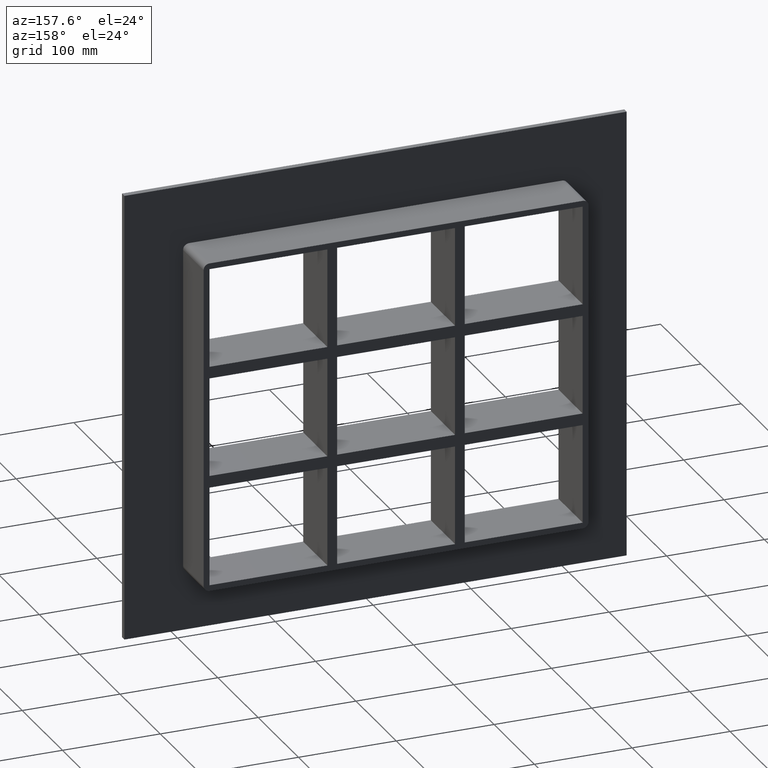
[diagram: clean part render]
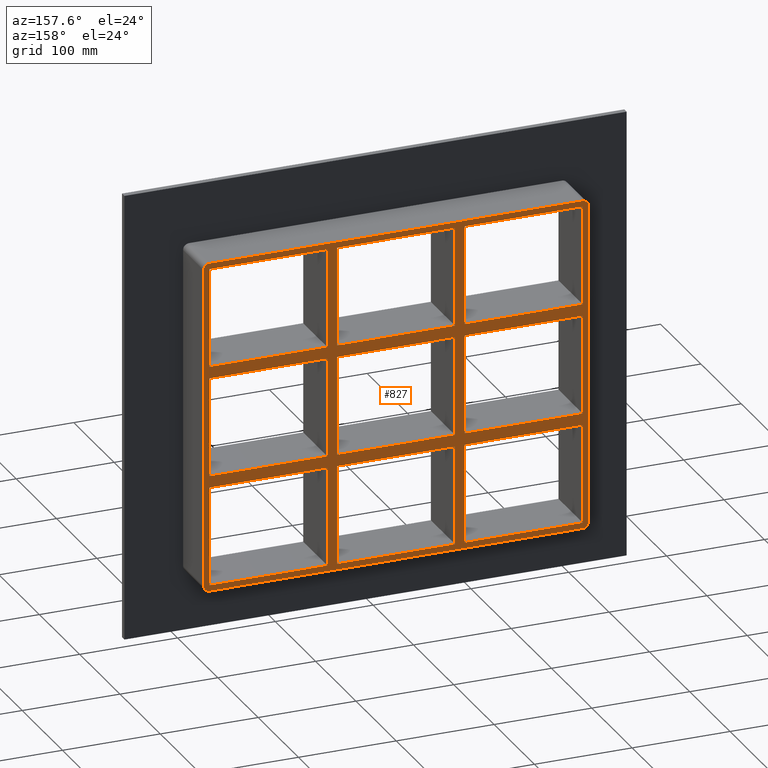
[diagram: same view with one face highlighted and labeled with its STEP entity id]
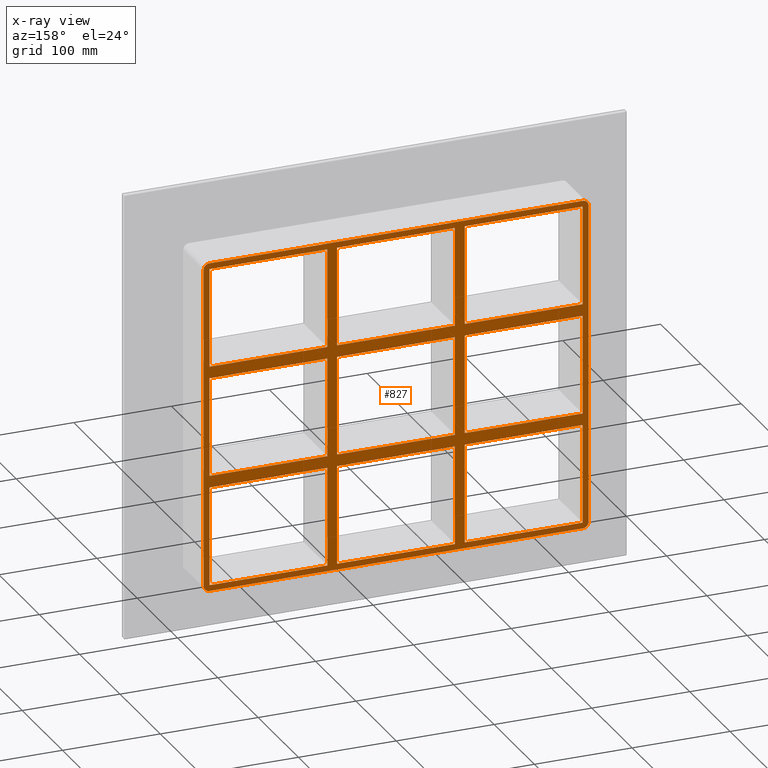
[diagram: x-ray of the same camera — body ghosted, the highlighted face saturated]
A machine part, auxiliary view. The second image highlights one B-rep face of the part: STEP entity #827.
The next image is the same camera in x-ray: the body ghosted, the highlighted face saturated — about 0% of this face is hidden behind the body in this view.
In plain terms, the highlighted planar face has unit normal (0, 1, 0).
Its self-contained STEP definition (entity closure, byte-faithful):
#75=CARTESIAN_POINT('',(-70.250000000001336,57.0,50.499999999990628));
#76=VERTEX_POINT('',#75);
#91=CARTESIAN_POINT('',(-190.74999999999966,57.0,50.499999999990628));
#92=VERTEX_POINT('',#91);
#99=CARTESIAN_POINT('',(-70.250000000001364,57.0,50.499999999990656));
#100=DIRECTION('',(-1.0,0.0,0.0));
#101=VECTOR('',#100,120.49999999999829);
#102=LINE('',#99,#101);
#103=EDGE_CURVE('',#76,#92,#102,.T.);
#113=CARTESIAN_POINT('',(70.250000000003638,57.0,50.499999999990692));
#114=VERTEX_POINT('',#113);
#123=CARTESIAN_POINT('',(190.74999999999818,57.0,50.49999999999072));
#124=VERTEX_POINT('',#123);
#125=CARTESIAN_POINT('',(190.74999999999818,57.0,50.49999999999072));
#126=DIRECTION('',(-1.0,0.0,0.0));
#127=VECTOR('',#126,120.49999999999454);
#128=LINE('',#125,#127);
#129=EDGE_CURVE('',#124,#114,#128,.T.);
#155=CARTESIAN_POINT('',(60.249999999998671,57.0,50.499999999990692));
#156=VERTEX_POINT('',#155);
#171=CARTESIAN_POINT('',(-60.249999999996362,57.0,50.499999999990663));
#172=VERTEX_POINT('',#171);
#179=CARTESIAN_POINT('',(60.249999999998664,57.0,50.499999999990692));
#180=DIRECTION('',(-1.0,0.0,0.0));
#181=VECTOR('',#180,120.49999999999503);
#182=LINE('',#179,#181);
#183=EDGE_CURVE('',#156,#172,#182,.T.);
#193=CARTESIAN_POINT('',(-70.250000000001336,57.0,62.499999999999893));
#194=VERTEX_POINT('',#193);
#203=CARTESIAN_POINT('',(-190.74999999999966,57.0,62.499999999999893));
#204=VERTEX_POINT('',#203);
#205=CARTESIAN_POINT('',(-190.74999999999966,57.0,62.499999999999893));
#206=DIRECTION('',(1.0,0.0,0.0));
#207=VECTOR('',#206,120.49999999999834);
#208=LINE('',#205,#207);
#209=EDGE_CURVE('',#204,#194,#208,.T.);
#235=CARTESIAN_POINT('',(70.250000000003638,57.0,62.499999999999893));
#236=VERTEX_POINT('',#235);
#251=CARTESIAN_POINT('',(190.74999999999994,57.0,62.499999999999893));
#252=VERTEX_POINT('',#251);
#259=CARTESIAN_POINT('',(70.250000000003638,57.0,62.499999999999893));
#260=DIRECTION('',(1.0,0.0,0.0));
#261=VECTOR('',#260,120.49999999999636);
#262=LINE('',#259,#261);
#263=EDGE_CURVE('',#236,#252,#262,.T.);
#273=CARTESIAN_POINT('',(60.249999999998671,57.0,62.499999999999893));
#274=VERTEX_POINT('',#273);
#283=CARTESIAN_POINT('',(-60.249999999996362,57.0,62.499999999999893));
#284=VERTEX_POINT('',#283);
#285=CARTESIAN_POINT('',(-60.249999999996362,57.0,62.499999999999893));
#286=DIRECTION('',(1.0,0.0,0.0));
#287=VECTOR('',#286,120.49999999999505);
#288=LINE('',#285,#287);
#289=EDGE_CURVE('',#284,#274,#288,.T.);
#314=CARTESIAN_POINT('',(-190.75,57.0,163.50000000000006));
#315=VERTEX_POINT('',#314);
#316=CARTESIAN_POINT('',(-190.75000000000003,57.0,163.50000000000003));
#317=DIRECTION('',(0.0,0.0,-1.0));
#318=VECTOR('',#317,101.00000000000014);
#319=LINE('',#316,#318);
#320=EDGE_CURVE('',#315,#204,#319,.T.);
#345=CARTESIAN_POINT('',(190.74999999999994,57.0,-50.500000000000114));
#346=VERTEX_POINT('',#345);
#347=CARTESIAN_POINT('',(190.75000000000006,57.0,-50.500000000000114));
#348=DIRECTION('',(0.0,0.0,1.0));
#349=VECTOR('',#348,100.99999999999083);
#350=LINE('',#347,#349);
#351=EDGE_CURVE('',#346,#124,#350,.T.);
#384=CARTESIAN_POINT('',(190.75000000000006,57.0,163.50000000000006));
#385=VERTEX_POINT('',#384);
#392=CARTESIAN_POINT('',(190.75000000000006,57.0,62.499999999999901));
#393=DIRECTION('',(0.0,0.0,1.0));
#394=VECTOR('',#393,101.00000000000016);
#395=LINE('',#392,#394);
#396=EDGE_CURVE('',#252,#385,#395,.T.);
#415=CARTESIAN_POINT('',(60.24999999999865,57.0,163.50000000000006));
#416=VERTEX_POINT('',#415);
#423=CARTESIAN_POINT('',(60.249999999998671,57.0,62.499999999999886));
#424=DIRECTION('',(0.0,0.0,1.0));
#425=VECTOR('',#424,101.00000000000017);
#426=LINE('',#423,#425);
#427=EDGE_CURVE('',#274,#416,#426,.T.);
#438=CARTESIAN_POINT('',(70.250000000003638,57.0,163.50000000000006));
#439=VERTEX_POINT('',#438);
#440=CARTESIAN_POINT('',(70.250000000003638,57.0,163.50000000000006));
#441=DIRECTION('',(0.0,0.0,-1.0));
#442=VECTOR('',#441,101.00000000000016);
#443=LINE('',#440,#442);
#444=EDGE_CURVE('',#439,#236,#443,.T.);
#477=CARTESIAN_POINT('',(-70.25000000000135,57.0,163.50000000000006));
#478=VERTEX_POINT('',#477);
#485=CARTESIAN_POINT('',(-70.25000000000135,57.0,62.499999999999886));
#486=DIRECTION('',(0.0,0.0,1.0));
#487=VECTOR('',#486,101.00000000000017);
#488=LINE('',#485,#487);
#489=EDGE_CURVE('',#194,#478,#488,.T.);
#500=CARTESIAN_POINT('',(-70.250000000001322,57.0,-50.500000000000114));
#501=VERTEX_POINT('',#500);
#502=CARTESIAN_POINT('',(-70.250000000001322,57.0,-50.500000000000114));
#503=DIRECTION('',(0.0,0.0,1.0));
#504=VECTOR('',#503,100.99999999999073);
#505=LINE('',#502,#504);
#506=EDGE_CURVE('',#501,#76,#505,.T.);
#531=CARTESIAN_POINT('',(-60.249999999996362,57.0,163.50000000000006));
#532=VERTEX_POINT('',#531);
#533=CARTESIAN_POINT('',(-60.249999999996362,57.0,163.50000000000006));
#534=DIRECTION('',(0.0,0.0,-1.0));
#535=VECTOR('',#534,101.00000000000016);
#536=LINE('',#533,#535);
#537=EDGE_CURVE('',#532,#284,#536,.T.);
#556=CARTESIAN_POINT('',(0.0,57.0,0.0));
#557=DIRECTION('',(0.0,1.0,0.0));
#558=DIRECTION('',(0.0,0.0,1.0));
#559=AXIS2_PLACEMENT_3D('',#556,#557,#558);
#560=PLANE('',#559);
#561=CARTESIAN_POINT('',(190.75000000000003,57.0,-169.50000000000003));
#562=VERTEX_POINT('',#561);
#563=CARTESIAN_POINT('',(196.75000000000006,57.0,-163.5));
#564=VERTEX_POINT('',#563);
#565=CARTESIAN_POINT('',(190.75000000000003,57.0,-163.5));
#566=DIRECTION('',(0.0,-1.0,0.0));
#567=DIRECTION('',(0.707106781186548,0.0,-0.707106781186548));
#568=AXIS2_PLACEMENT_3D('',#565,#566,#567);
#569=CIRCLE('',#568,6.000000000000002);
#570=EDGE_CURVE('',#562,#564,#569,.T.);
#571=ORIENTED_EDGE('',*,*,#570,.F.);
#572=CARTESIAN_POINT('',(-190.75000000000003,57.0,-169.50000000000003));
#573=VERTEX_POINT('',#572);
#574=CARTESIAN_POINT('',(190.75000000000006,57.0,-169.50000000000003));
#575=DIRECTION('',(-1.0,0.0,0.0));
#576=VECTOR('',#575,381.50000000000006);
#577=LINE('',#574,#576);
#578=EDGE_CURVE('',#562,#573,#577,.T.);
#579=ORIENTED_EDGE('',*,*,#578,.T.);
#580=CARTESIAN_POINT('',(-196.75000000000006,57.0,-163.5));
#581=VERTEX_POINT('',#580);
#582=CARTESIAN_POINT('',(-190.75000000000003,57.0,-163.5));
#583=DIRECTION('',(0.0,-1.0,0.0));
#584=DIRECTION('',(-0.707106781186548,0.0,-0.707106781186548));
#585=AXIS2_PLACEMENT_3D('',#582,#583,#584);
#586=CIRCLE('',#585,6.000000000000002);
#587=EDGE_CURVE('',#581,#573,#586,.T.);
#588=ORIENTED_EDGE('',*,*,#587,.F.);
#589=CARTESIAN_POINT('',(-196.75000000000006,57.0,163.5));
#590=VERTEX_POINT('',#589);
#591=CARTESIAN_POINT('',(-196.75000000000006,57.0,-163.5));
#592=DIRECTION('',(0.0,0.0,1.0));
#593=VECTOR('',#592,327.0);
#594=LINE('',#591,#593);
#595=EDGE_CURVE('',#581,#590,#594,.T.);
#596=ORIENTED_EDGE('',*,*,#595,.T.);
#597=CARTESIAN_POINT('',(-190.75000000000003,57.0,169.50000000000003));
#598=VERTEX_POINT('',#597);
#599=CARTESIAN_POINT('',(-190.75000000000003,57.0,163.5));
#600=DIRECTION('',(0.0,-1.0,0.0));
#601=DIRECTION('',(-0.707106781186548,0.0,0.707106781186548));
#602=AXIS2_PLACEMENT_3D('',#599,#600,#601);
#603=CIRCLE('',#602,6.000000000000002);
#604=EDGE_CURVE('',#598,#590,#603,.T.);
#605=ORIENTED_EDGE('',*,*,#604,.F.);
#606=CARTESIAN_POINT('',(190.75000000000003,57.0,169.50000000000003));
#607=VERTEX_POINT('',#606);
#608=CARTESIAN_POINT('',(-190.75000000000006,57.0,169.50000000000003));
#609=DIRECTION('',(1.0,0.0,0.0));
#610=VECTOR('',#609,381.50000000000006);
#611=LINE('',#608,#610);
#612=EDGE_CURVE('',#598,#607,#611,.T.);
#613=ORIENTED_EDGE('',*,*,#612,.T.);
#614=CARTESIAN_POINT('',(196.75000000000006,57.0,163.5));
#615=VERTEX_POINT('',#614);
#616=CARTESIAN_POINT('',(190.75000000000003,57.0,163.5));
#617=DIRECTION('',(0.0,-1.0,0.0));
#618=DIRECTION('',(0.707106781186548,0.0,0.707106781186548));
#619=AXIS2_PLACEMENT_3D('',#616,#617,#618);
#620=CIRCLE('',#619,6.000000000000002);
#621=EDGE_CURVE('',#615,#607,#620,.T.);
#622=ORIENTED_EDGE('',*,*,#621,.F.);
#623=CARTESIAN_POINT('',(196.75000000000006,57.0,163.5));
#624=DIRECTION('',(0.0,0.0,-1.0));
#625=VECTOR('',#624,327.0);
#626=LINE('',#623,#625);
#627=EDGE_CURVE('',#615,#564,#626,.T.);
#628=ORIENTED_EDGE('',*,*,#627,.T.);
#629=EDGE_LOOP('',(#571,#579,#588,#596,#605,#613,#622,#628));
#630=FACE_OUTER_BOUND('',#629,.T.);
#631=CARTESIAN_POINT('',(-190.74999999999966,57.0,-50.500000000000114));
#632=VERTEX_POINT('',#631);
#633=CARTESIAN_POINT('',(-190.75000000000003,57.0,50.499999999990621));
#634=DIRECTION('',(0.0,0.0,-1.0));
#635=VECTOR('',#634,100.99999999999073);
#636=LINE('',#633,#635);
#637=EDGE_CURVE('',#92,#632,#636,.T.);
#638=ORIENTED_EDGE('',*,*,#637,.T.);
#639=CARTESIAN_POINT('',(-190.74999999999966,57.0,-50.500000000000114));
#640=DIRECTION('',(1.0,0.0,0.0));
#641=VECTOR('',#640,120.49999999999835);
#642=LINE('',#639,#641);
#643=EDGE_CURVE('',#632,#501,#642,.T.);
#644=ORIENTED_EDGE('',*,*,#643,.T.);
#645=ORIENTED_EDGE('',*,*,#506,.T.);
#646=ORIENTED_EDGE('',*,*,#103,.T.);
#647=EDGE_LOOP('',(#638,#644,#645,#646));
#648=FACE_BOUND('',#647,.T.);
#649=ORIENTED_EDGE('',*,*,#396,.T.);
#650=CARTESIAN_POINT('',(190.75000000000006,57.0,163.50000000000006));
#651=DIRECTION('',(-1.0,0.0,0.0));
#652=VECTOR('',#651,120.4999999999964);
#653=LINE('',#650,#652);
#654=EDGE_CURVE('',#385,#439,#653,.T.);
#655=ORIENTED_EDGE('',*,*,#654,.T.);
#656=ORIENTED_EDGE('',*,*,#444,.T.);
#657=ORIENTED_EDGE('',*,*,#263,.T.);
#658=EDGE_LOOP('',(#649,#655,#656,#657));
#659=FACE_BOUND('',#658,.T.);
#660=ORIENTED_EDGE('',*,*,#427,.T.);
#661=CARTESIAN_POINT('',(60.24999999999865,57.0,163.50000000000006));
#662=DIRECTION('',(-1.0,0.0,0.0));
#663=VECTOR('',#662,120.49999999999501);
#664=LINE('',#661,#663);
#665=EDGE_CURVE('',#416,#532,#664,.T.);
#666=ORIENTED_EDGE('',*,*,#665,.T.);
#667=ORIENTED_EDGE('',*,*,#537,.T.);
#668=ORIENTED_EDGE('',*,*,#289,.T.);
#669=EDGE_LOOP('',(#660,#666,#667,#668));
#670=FACE_BOUND('',#669,.T.);
#671=ORIENTED_EDGE('',*,*,#129,.T.);
#672=CARTESIAN_POINT('',(70.250000000003638,57.0,-50.500000000000114));
#673=VERTEX_POINT('',#672);
#674=CARTESIAN_POINT('',(70.250000000003638,57.0,50.499999999990706));
#675=DIRECTION('',(0.0,0.0,-1.0));
#676=VECTOR('',#675,100.99999999999082);
#677=LINE('',#674,#676);
#678=EDGE_CURVE('',#114,#673,#677,.T.);
#679=ORIENTED_EDGE('',*,*,#678,.T.);
#680=CARTESIAN_POINT('',(70.250000000003638,57.0,-50.500000000000114));
#681=DIRECTION('',(1.0,0.0,0.0));
#682=VECTOR('',#681,120.49999999999636);
#683=LINE('',#680,#682);
#684=EDGE_CURVE('',#673,#346,#683,.T.);
#685=ORIENTED_EDGE('',*,*,#684,.T.);
#686=ORIENTED_EDGE('',*,*,#351,.T.);
#687=EDGE_LOOP('',(#671,#679,#685,#686));
#688=FACE_BOUND('',#687,.T.);
#689=ORIENTED_EDGE('',*,*,#183,.T.);
#690=CARTESIAN_POINT('',(-60.249999999996362,57.0,-50.500000000000114));
#691=VERTEX_POINT('',#690);
#692=CARTESIAN_POINT('',(-60.249999999996362,57.0,50.499999999990678));
#693=DIRECTION('',(0.0,0.0,-1.0));
#694=VECTOR('',#693,100.99999999999079);
#695=LINE('',#692,#694);
#696=EDGE_CURVE('',#172,#691,#695,.T.);
#697=ORIENTED_EDGE('',*,*,#696,.T.);
#698=CARTESIAN_POINT('',(60.249999999998693,57.0,-50.500000000000114));
#699=VERTEX_POINT('',#698);
#700=CARTESIAN_POINT('',(-60.249999999996362,57.0,-50.500000000000114));
#701=DIRECTION('',(1.0,0.0,0.0));
#702=VECTOR('',#701,120.49999999999508);
#703=LINE('',#700,#702);
#704=EDGE_CURVE('',#691,#699,#703,.T.);
#705=ORIENTED_EDGE('',*,*,#704,.T.);
#706=CARTESIAN_POINT('',(60.249999999998685,57.0,-50.500000000000114));
#707=DIRECTION('',(0.0,0.0,1.0));
#708=VECTOR('',#707,100.99999999999079);
#709=LINE('',#706,#708);
#710=EDGE_CURVE('',#699,#156,#709,.T.);
#711=ORIENTED_EDGE('',*,*,#710,.T.);
#712=EDGE_LOOP('',(#689,#697,#705,#711));
#713=FACE_BOUND('',#712,.T.);
#714=CARTESIAN_POINT('',(-190.74999999999966,57.0,-62.500000000009379));
#715=VERTEX_POINT('',#714);
#716=CARTESIAN_POINT('',(-190.75,57.0,-163.50000000000006));
#717=VERTEX_POINT('',#716);
#718=CARTESIAN_POINT('',(-190.75000000000003,57.0,-62.500000000009379));
#719=DIRECTION('',(0.0,0.0,-1.0));
#720=VECTOR('',#719,100.99999999999068);
#721=LINE('',#718,#720);
#722=EDGE_CURVE('',#715,#717,#721,.T.);
#723=ORIENTED_EDGE('',*,*,#722,.T.);
#724=CARTESIAN_POINT('',(-70.250000000001307,57.0,-163.50000000000006));
#725=VERTEX_POINT('',#724);
#726=CARTESIAN_POINT('',(-190.75000000000003,57.0,-163.50000000000006));
#727=DIRECTION('',(1.0,0.0,0.0));
#728=VECTOR('',#727,120.49999999999869);
#729=LINE('',#726,#728);
#730=EDGE_CURVE('',#717,#725,#729,.T.);
#731=ORIENTED_EDGE('',*,*,#730,.T.);
#732=CARTESIAN_POINT('',(-70.250000000001307,57.0,-62.500000000009351));
#733=VERTEX_POINT('',#732);
#734=CARTESIAN_POINT('',(-70.250000000001307,57.0,-163.50000000000006));
#735=DIRECTION('',(0.0,0.0,1.0));
#736=VECTOR('',#735,100.99999999999071);
#737=LINE('',#734,#736);
#738=EDGE_CURVE('',#725,#733,#737,.T.);
#739=ORIENTED_EDGE('',*,*,#738,.T.);
#740=CARTESIAN_POINT('',(-70.250000000001307,57.0,-62.500000000009358));
#741=DIRECTION('',(-1.0,0.0,0.0));
#742=VECTOR('',#741,120.49999999999835);
#743=LINE('',#740,#742);
#744=EDGE_CURVE('',#733,#715,#743,.T.);
#745=ORIENTED_EDGE('',*,*,#744,.T.);
#746=EDGE_LOOP('',(#723,#731,#739,#745));
#747=FACE_BOUND('',#746,.T.);
#748=CARTESIAN_POINT('',(60.249999999998707,57.0,-163.50000000000006));
#749=VERTEX_POINT('',#748);
#750=CARTESIAN_POINT('',(60.249999999998693,57.0,-62.500000000009322));
#751=VERTEX_POINT('',#750);
#752=CARTESIAN_POINT('',(60.249999999998707,57.0,-163.50000000000006));
#753=DIRECTION('',(0.0,0.0,1.0));
#754=VECTOR('',#753,100.99999999999072);
#755=LINE('',#752,#754);
#756=EDGE_CURVE('',#749,#751,#755,.T.);
#757=ORIENTED_EDGE('',*,*,#756,.T.);
#758=CARTESIAN_POINT('',(-60.249999999996362,57.0,-62.500000000009351));
#759=VERTEX_POINT('',#758);
#760=CARTESIAN_POINT('',(60.249999999998693,57.0,-62.500000000009322));
#761=DIRECTION('',(-1.0,0.0,0.0));
#762=VECTOR('',#761,120.49999999999505);
#763=LINE('',#760,#762);
#764=EDGE_CURVE('',#751,#759,#763,.T.);
#765=ORIENTED_EDGE('',*,*,#764,.T.);
#766=CARTESIAN_POINT('',(-60.249999999996362,57.0,-163.49999999998428));
#767=VERTEX_POINT('',#766);
#768=CARTESIAN_POINT('',(-60.249999999996362,57.0,-62.500000000009322));
#769=DIRECTION('',(0.0,0.0,-1.0));
#770=VECTOR('',#769,100.99999999997493);
#771=LINE('',#768,#770);
#772=EDGE_CURVE('',#759,#767,#771,.T.);
#773=ORIENTED_EDGE('',*,*,#772,.T.);
#774=CARTESIAN_POINT('',(-60.249999999996362,57.0,-163.50000000000006));
#775=DIRECTION('',(1.0,0.0,0.0));
#776=VECTOR('',#775,120.49999999999507);
#777=LINE('',#774,#776);
#778=EDGE_CURVE('',#767,#749,#777,.T.);
#779=ORIENTED_EDGE('',*,*,#778,.T.);
#780=EDGE_LOOP('',(#757,#765,#773,#779));
#781=FACE_BOUND('',#780,.T.);
#782=ORIENTED_EDGE('',*,*,#209,.T.);
#783=ORIENTED_EDGE('',*,*,#489,.T.);
#784=CARTESIAN_POINT('',(-70.25000000000135,57.0,163.50000000000006));
#785=DIRECTION('',(-1.0,0.0,0.0));
#786=VECTOR('',#785,120.49999999999865);
#787=LINE('',#784,#786);
#788=EDGE_CURVE('',#478,#315,#787,.T.);
#789=ORIENTED_EDGE('',*,*,#788,.T.);
#790=ORIENTED_EDGE('',*,*,#320,.T.);
#791=EDGE_LOOP('',(#782,#783,#789,#790));
#792=FACE_BOUND('',#791,.T.);
#793=CARTESIAN_POINT('',(70.250000000003638,57.0,-163.49999999998428));
#794=VERTEX_POINT('',#793);
#795=CARTESIAN_POINT('',(190.75000000000006,57.0,-163.50000000000006));
#796=VERTEX_POINT('',#795);
#797=CARTESIAN_POINT('',(70.250000000003638,57.0,-163.50000000000006));
#798=DIRECTION('',(1.0,0.0,0.0));
#799=VECTOR('',#798,120.49999999999642);
#800=LINE('',#797,#799);
#801=EDGE_CURVE('',#794,#796,#800,.T.);
#802=ORIENTED_EDGE('',*,*,#801,.T.);
#803=CARTESIAN_POINT('',(190.74999999999818,57.0,-62.500000000009294));
#804=VERTEX_POINT('',#803);
#805=CARTESIAN_POINT('',(190.75000000000006,57.0,-163.50000000000003));
#806=DIRECTION('',(0.0,0.0,1.0));
#807=VECTOR('',#806,100.99999999999073);
#808=LINE('',#805,#807);
#809=EDGE_CURVE('',#796,#804,#808,.T.);
#810=ORIENTED_EDGE('',*,*,#809,.T.);
#811=CARTESIAN_POINT('',(70.250000000003638,57.0,-62.500000000009308));
#812=VERTEX_POINT('',#811);
#813=CARTESIAN_POINT('',(190.74999999999818,57.0,-62.500000000009294));
#814=DIRECTION('',(-1.0,0.0,0.0));
#815=VECTOR('',#814,120.49999999999454);
#816=LINE('',#813,#815);
#817=EDGE_CURVE('',#804,#812,#816,.T.);
#818=ORIENTED_EDGE('',*,*,#817,.T.);
#819=CARTESIAN_POINT('',(70.250000000003638,57.0,-62.500000000009294));
#820=DIRECTION('',(0.0,0.0,-1.0));
#821=VECTOR('',#820,100.99999999997496);
#822=LINE('',#819,#821);
#823=EDGE_CURVE('',#812,#794,#822,.T.);
#824=ORIENTED_EDGE('',*,*,#823,.T.);
#825=EDGE_LOOP('',(#802,#810,#818,#824));
#826=FACE_BOUND('',#825,.T.);
#827=ADVANCED_FACE('',(#630,#648,#659,#670,#688,#713,#747,#781,#792,#826),#560,.T.);